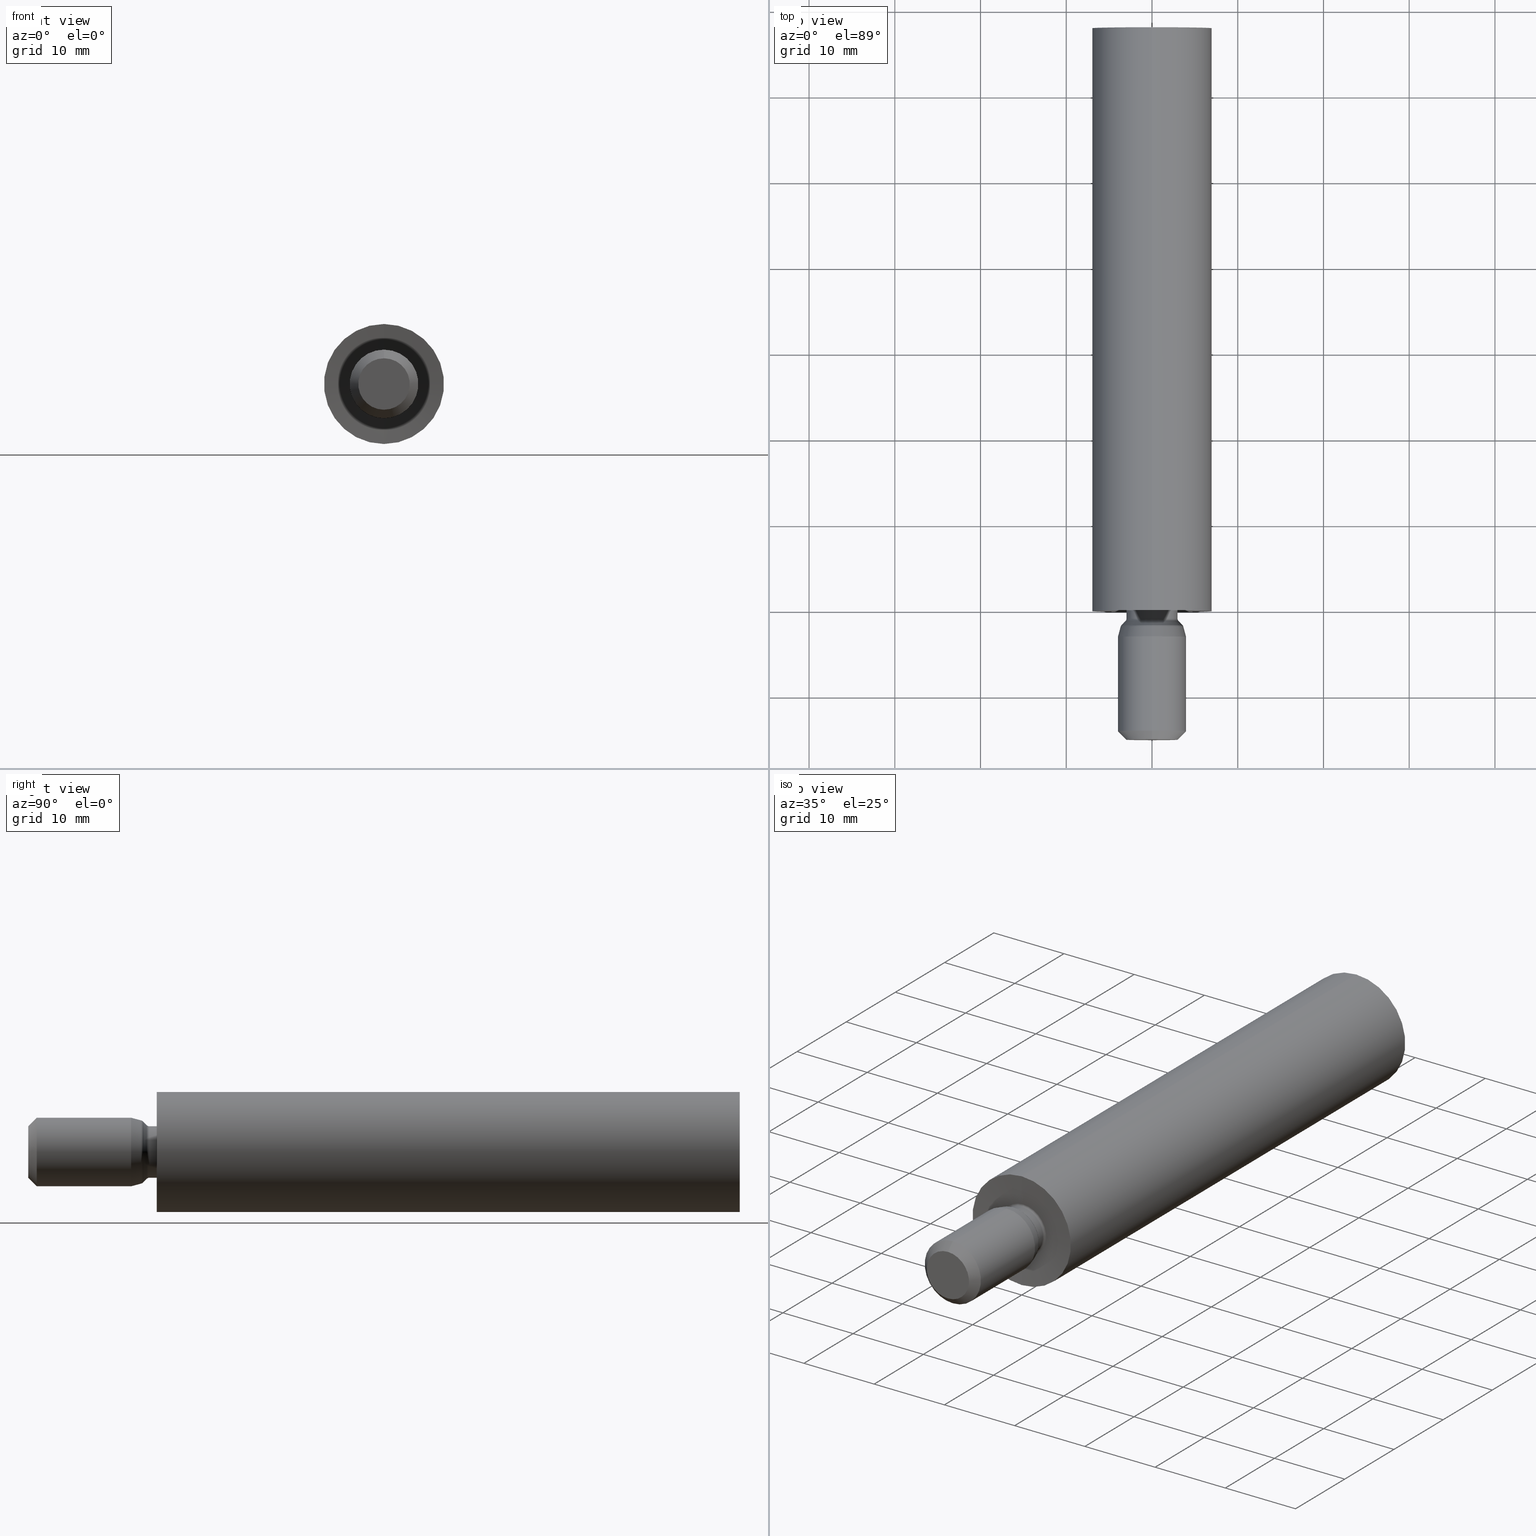
[diagram: canonical four-view strip — front | top / right | iso, engineering-drawing reading convention]
A machine part, canonical four-view strip (front | top / right | iso — engineering-drawing reading convention). The complete STEP part file that produces these views, byte-faithful:
ISO-10303-21;
HEADER;
FILE_DESCRIPTION (( 'STEP AP203' ),
    '1' );
FILE_NAME ('50233-240-68.STEP',
    '2018-05-07T08:55:37',
    ( '' ),
    ( '' ),
    'SwSTEP 2.0',
    'SolidWorks 2015',
    '' );
FILE_SCHEMA (( 'CONFIG_CONTROL_DESIGN' ));
ENDSEC;

DATA;
#1 = DIRECTION ( 'NONE',  ( -0.0000000000000000000, 1.000000000000000000, -0.0000000000000000000 ) ) ;
#2 = DIRECTION ( 'NONE',  ( 1.000000000000000000, 0.0000000000000000000, -1.224646799147353200E-016 ) ) ;
#3 = EDGE_CURVE ( 'NONE', #828, #812, #549, .T. ) ;
#4 = CARTESIAN_POINT ( 'NONE',  ( 0.0000000000000000000, -1.550045345896331300, 0.0000000000000000000 ) ) ;
#5 = CIRCLE ( 'NONE', #180, 7.000000000000000000 ) ;
#6 = COORDINATED_UNIVERSAL_TIME_OFFSET ( 1, 0, .AHEAD. ) ;
#7 = LINE ( 'NONE', #407, #30 ) ;
#8 = DIRECTION ( 'NONE',  ( 0.0000000000000000000, 0.0000000000000000000, -1.000000000000000000 ) ) ;
#9 = EDGE_LOOP ( 'NONE', ( #570, #148, #437, #18 ) ) ;
#10 = VERTEX_POINT ( 'NONE', #316 ) ;
#11 = DIRECTION ( 'NONE',  ( -1.224646799147352200E-016, 0.0000000000000000000, -1.000000000000000000 ) ) ;
#12 = EDGE_LOOP ( 'NONE', ( #499, #52, #738, #602 ) ) ;
#13 = DIRECTION ( 'NONE',  ( 0.0000000000000000000, -0.08715574274765149100, -0.9961946980917461000 ) ) ;
#14 = AXIS2_PLACEMENT_3D ( 'NONE', #155, #541, #789 ) ;
#15 = CALENDAR_DATE ( 2018, 7, 5 ) ;
#16 = DIRECTION ( 'NONE',  ( -0.0000000000000000000, -1.000000000000000000, -0.0000000000000000000 ) ) ;
#17 = VECTOR ( 'NONE', #526, 1000.000000000000000 ) ;
#18 = ORIENTED_EDGE ( 'NONE', *, *, #459, .F. ) ;
#19 = CARTESIAN_POINT ( 'NONE',  ( 4.006785847574703800E-016, 0.3261762033592892100, 3.271788935686913200 ) ) ;
#20 = EDGE_LOOP ( 'NONE', ( #769, #169, #727, #355 ) ) ;
#21 =( NAMED_UNIT ( * ) PLANE_ANGLE_UNIT ( ) SI_UNIT ( $, .RADIAN. ) );
#22 = ORIENTED_EDGE ( 'NONE', *, *, #64, .T. ) ;
#23 = EDGE_CURVE ( 'NONE', #372, #765, #666, .T. ) ;
#24 = CARTESIAN_POINT ( 'NONE',  ( 0.0000000000000000000, -14.99999999999999800, 0.0000000000000000000 ) ) ;
#25 = CARTESIAN_POINT ( 'NONE',  ( 0.0000000000000000000, 64.50000000000000000, 0.0000000000000000000 ) ) ;
#26 = PERSON_AND_ORGANIZATION_ROLE ( 'design_owner' ) ;
#27 = EDGE_CURVE ( 'NONE', #580, #433, #157, .T. ) ;
#28 = TOROIDAL_SURFACE ( 'NONE', #14, 3.399999999999999900, 0.3999999999999996300 ) ;
#29 = CARTESIAN_POINT ( 'NONE',  ( 0.0000000000000000000, 68.00000000000000000, 6.000000000000000000 ) ) ;
#30 = VECTOR ( 'NONE', #219, 1000.000000000000000 ) ;
#31 = DIRECTION ( 'NONE',  ( 0.0000000000000000000, 0.0000000000000000000, -1.000000000000000000 ) ) ;
#32 = ORIENTED_EDGE ( 'NONE', *, *, #563, .T. ) ;
#33 = ORIENTED_EDGE ( 'NONE', *, *, #3, .T. ) ;
#34 = AXIS2_PLACEMENT_3D ( 'NONE', #310, #763, #517 ) ;
#35 = COORDINATED_UNIVERSAL_TIME_OFFSET ( 1, 0, .AHEAD. ) ;
#36 = ORGANIZATION ( 'UNSPECIFIED', 'UNSPECIFIED', '' ) ;
#37 = AXIS2_PLACEMENT_3D ( 'NONE', #792, #787, #278 ) ;
#38 = CIRCLE ( 'NONE', #540, 6.000000000000000000 ) ;
#39 = ORIENTED_EDGE ( 'NONE', *, *, #818, .F. ) ;
#40 = ADVANCED_FACE ( 'NONE', ( #238 ), #104, .T. ) ;
#41 = ORIENTED_EDGE ( 'NONE', *, *, #274, .F. ) ;
#42 = ORIENTED_EDGE ( 'NONE', *, *, #687, .T. ) ;
#43 = CARTESIAN_POINT ( 'NONE',  ( 0.0000000000000000000, -9.860761315262647600E-029, 0.0000000000000000000 ) ) ;
#44 = AXIS2_PLACEMENT_3D ( 'NONE', #25, #685, #297 ) ;
#45 = ADVANCED_FACE ( 'NONE', ( #443 ), #232, .T. ) ;
#46 = CARTESIAN_POINT ( 'NONE',  ( 0.0000000000000000000, -1.809049064345286600, 0.0000000000000000000 ) ) ;
#47 = FACE_OUTER_BOUND ( 'NONE', #239, .T. ) ;
#48 = ADVANCED_FACE ( 'NONE', ( #588 ), #351, .T. ) ;
#49 = FACE_OUTER_BOUND ( 'NONE', #713, .T. ) ;
#50 = DIRECTION ( 'NONE',  ( 0.0000000000000000000, 1.000000000000000000, 0.0000000000000000000 ) ) ;
#51 = EDGE_CURVE ( 'NONE', #658, #696, #65, .T. ) ;
#52 = ORIENTED_EDGE ( 'NONE', *, *, #603, .F. ) ;
#53 = ORIENTED_EDGE ( 'NONE', *, *, #613, .T. ) ;
#54 = ORIENTED_EDGE ( 'NONE', *, *, #770, .T. ) ;
#55 = EDGE_LOOP ( 'NONE', ( #197, #698, #435, #819 ) ) ;
#56 = DIRECTION ( 'NONE',  ( -0.0000000000000000000, -1.000000000000000000, -0.0000000000000000000 ) ) ;
#57 = ADVANCED_FACE ( 'NONE', ( #114 ), #711, .F. ) ;
#58 = CARTESIAN_POINT ( 'NONE',  ( 0.0000000000000000000, 68.00000000000000000, 2.499999999999992900 ) ) ;
#59 = AXIS2_PLACEMENT_3D ( 'NONE', #411, #418, #11 ) ;
#60 = CARTESIAN_POINT ( 'NONE',  ( 0.0000000000000000000, -14.99999999999999800, 0.0000000000000000000 ) ) ;
#61 = DIRECTION ( 'NONE',  ( 0.0000000000000000000, 0.0000000000000000000, -1.000000000000000000 ) ) ;
#62 = DATE_AND_TIME ( #190, #518 ) ;
#63 = LINE ( 'NONE', #537, #510 ) ;
#64 = EDGE_CURVE ( 'NONE', #696, #766, #810, .T. ) ;
#65 = CIRCLE ( 'NONE', #153, 0.2500000000000002200 ) ;
#66 = CARTESIAN_POINT ( 'NONE',  ( 0.0000000000000000000, -1.275275128543790200, 0.0000000000000000000 ) ) ;
#67 = EDGE_LOOP ( 'NONE', ( #695, #600 ) ) ;
#68 = DIRECTION ( 'NONE',  ( 1.000000000000000000, 0.0000000000000000000, -1.224646799147353200E-016 ) ) ;
#69 = ORIENTED_EDGE ( 'NONE', *, *, #446, .T. ) ;
#70 = DIRECTION ( 'NONE',  ( -1.224646799147353500E-016, 0.0000000000000000000, -1.000000000000000000 ) ) ;
#71 = DIRECTION ( 'NONE',  ( -0.0000000000000000000, -1.000000000000000000, -0.0000000000000000000 ) ) ;
#72 = DIRECTION ( 'NONE',  ( 0.0000000000000000000, 0.0000000000000000000, -1.000000000000000000 ) ) ;
#73 = AXIS2_PLACEMENT_3D ( 'NONE', #265, #657, #530 ) ;
#74 = DIRECTION ( 'NONE',  ( 0.0000000000000000000, 0.0000000000000000000, 1.000000000000000000 ) ) ;
#75 = CARTESIAN_POINT ( 'NONE',  ( 0.0000000000000000000, -13.99999999999999800, 0.0000000000000000000 ) ) ;
#76 = VECTOR ( 'NONE', #288, 999.9999999999998900 ) ;
#77 = CARTESIAN_POINT ( 'NONE',  ( 0.0000000000000000000, 68.00000000000000000, 0.0000000000000000000 ) ) ;
#78 = FACE_OUTER_BOUND ( 'NONE', #149, .T. ) ;
#79 = EDGE_CURVE ( 'NONE', #233, #333, #322, .T. ) ;
#80 = CARTESIAN_POINT ( 'NONE',  ( 0.0000000000000000000, 68.00000000000000000, -7.000000000000000000 ) ) ;
#81 = ORIENTED_EDGE ( 'NONE', *, *, #651, .F. ) ;
#82 = ORIENTED_EDGE ( 'NONE', *, *, #821, .F. ) ;
#83 = CARTESIAN_POINT ( 'NONE',  ( 0.0000000000000000000, 68.00000000000000000, 0.0000000000000000000 ) ) ;
#84 = CC_DESIGN_PERSON_AND_ORGANIZATION_ASSIGNMENT ( #88, #294, ( #552 ) ) ;
#85 = DIRECTION ( 'NONE',  ( -0.0000000000000000000, 1.000000000000000000, -0.0000000000000000000 ) ) ;
#86 = DIRECTION ( 'NONE',  ( 0.0000000000000000000, 0.0000000000000000000, 1.000000000000000000 ) ) ;
#87 = AXIS2_PLACEMENT_3D ( 'NONE', #699, #56, #706 ) ;
#88 = PERSON_AND_ORGANIZATION ( #509, #36 ) ;
#89 = VECTOR ( 'NONE', #162, 1000.000000000000000 ) ;
#90 = CIRCLE ( 'NONE', #586, 0.2500000000000002200 ) ;
#91 = DIRECTION ( 'NONE',  ( 0.0000000000000000000, 0.0000000000000000000, -1.000000000000000000 ) ) ;
#92 = ORIENTED_EDGE ( 'NONE', *, *, #697, .F. ) ;
#93 = AXIS2_PLACEMENT_3D ( 'NONE', #596, #394, #61 ) ;
#94 = CARTESIAN_POINT ( 'NONE',  ( 7.347880794884119700E-016, 68.00000000000000000, -6.000000000000000000 ) ) ;
#95 = CARTESIAN_POINT ( 'NONE',  ( 3.061616997868373800E-016, 68.00000000000000000, -2.499999999999992900 ) ) ;
#96 = CARTESIAN_POINT ( 'NONE',  ( 4.703186018189976500E-016, -1.809049064345286600, 3.680885658566238400 ) ) ;
#97 = EDGE_CURVE ( 'NONE', #105, #580, #256, .T. ) ;
#98 = AXIS2_PLACEMENT_3D ( 'NONE', #483, #611, #8 ) ;
#99 = PERSON_AND_ORGANIZATION ( #509, #36 ) ;
#100 = APPROVAL_ROLE ( '' ) ;
#101 = CYLINDRICAL_SURFACE ( 'NONE', #504, 3.000000000000000000 ) ;
#102 = CIRCLE ( 'NONE', #324, 2.499999999999997300 ) ;
#103 = DIRECTION ( 'NONE',  ( 0.0000000000000000000, 0.0000000000000000000, -1.000000000000000000 ) ) ;
#104 = CONICAL_SURFACE ( 'NONE', #681, 3.487401222381565400, 0.7572499996842397800 ) ;
#105 = VERTEX_POINT ( 'NONE', #775 ) ;
#106 = APPROVAL_STATUS ( 'not_yet_approved' ) ;
#107 = VERTEX_POINT ( 'NONE', #463 ) ;
#108 = EDGE_CURVE ( 'NONE', #105, #766, #90, .T. ) ;
#109 = DIRECTION ( 'NONE',  ( 0.0000000000000000000, 0.0000000000000000000, 1.000000000000000000 ) ) ;
#110 = DIRECTION ( 'NONE',  ( 0.0000000000000000000, 0.0000000000000000000, -1.000000000000000000 ) ) ;
#111 = CARTESIAN_POINT ( 'NONE',  ( 0.0000000000000000000, 0.0000000000000000000, 0.0000000000000000000 ) ) ;
#112 = EDGE_CURVE ( 'NONE', #160, #762, #569, .T. ) ;
#113 = CONICAL_SURFACE ( 'NONE', #409, 2.499999999999994700, 1.029744258676653000 ) ;
#114 = FACE_OUTER_BOUND ( 'NONE', #241, .T. ) ;
#115 = ORIENTED_EDGE ( 'NONE', *, *, #393, .F. ) ;
#116 = ORIENTED_EDGE ( 'NONE', *, *, #108, .T. ) ;
#117 = EDGE_LOOP ( 'NONE', ( #161, #53, #41, #226 ) ) ;
#118 = EDGE_CURVE ( 'NONE', #10, #271, #390, .T. ) ;
#119 = AXIS2_PLACEMENT_3D ( 'NONE', #736, #550, #338 ) ;
#120 = ADVANCED_FACE ( 'NONE', ( #136 ), #598, .F. ) ;
#121 = DATE_AND_TIME ( #15, #567 ) ;
#122 = ADVANCED_FACE ( 'NONE', ( #725 ), #302, .T. ) ;
#123 = DIRECTION ( 'NONE',  ( -0.0000000000000000000, -1.000000000000000000, -0.0000000000000000000 ) ) ;
#124 = AXIS2_PLACEMENT_3D ( 'NONE', #720, #525, #259 ) ;
#125 = CYLINDRICAL_SURFACE ( 'NONE', #318, 3.000000000000000000 ) ;
#126 = CIRCLE ( 'NONE', #187, 4.000000000000000000 ) ;
#127 = ORIENTED_EDGE ( 'NONE', *, *, #556, .T. ) ;
#128 = DIRECTION ( 'NONE',  ( 0.0000000000000000000, 0.0000000000000000000, -1.000000000000000000 ) ) ;
#129 = ADVANCED_FACE ( 'NONE', ( #403 ), #745, .T. ) ;
#130 = ORIENTED_EDGE ( 'NONE', *, *, #721, .T. ) ;
#131 = EDGE_CURVE ( 'NONE', #461, #160, #248, .T. ) ;
#132 = CC_DESIGN_PERSON_AND_ORGANIZATION_ASSIGNMENT ( #809, #358, ( #616 ) ) ;
#133 = CARTESIAN_POINT ( 'NONE',  ( 0.0000000000000000000, -3.000000000000000000, 0.0000000000000000000 ) ) ;
#134 = CARTESIAN_POINT ( 'NONE',  ( 8.572527594031473200E-016, 68.00000000000000000, 7.000000000000000000 ) ) ;
#135 = AXIS2_PLACEMENT_3D ( 'NONE', #46, #151, #779 ) ;
#136 = FACE_OUTER_BOUND ( 'NONE', #165, .T. ) ;
#137 = VERTEX_POINT ( 'NONE', #154 ) ;
#138 = ORIENTED_EDGE ( 'NONE', *, *, #23, .F. ) ;
#139 = DIRECTION ( 'NONE',  ( -0.0000000000000000000, -1.000000000000000000, -0.0000000000000000000 ) ) ;
#140 = AXIS2_PLACEMENT_3D ( 'NONE', #489, #726, #548 ) ;
#141 = DIRECTION ( 'NONE',  ( -0.0000000000000000000, -1.000000000000000000, -0.0000000000000000000 ) ) ;
#142 = DIRECTION ( 'NONE',  ( -0.0000000000000000000, 1.000000000000000000, -0.0000000000000000000 ) ) ;
#143 = LINE ( 'NONE', #209, #17 ) ;
#144 = FACE_OUTER_BOUND ( 'NONE', #771, .T. ) ;
#145 = CARTESIAN_POINT ( 'NONE',  ( 0.0000000000000000000, 0.07712752883635271000, -3.250000000000000400 ) ) ;
#146 = DIRECTION ( 'NONE',  ( 0.0000000000000000000, -1.000000000000000000, -0.0000000000000000000 ) ) ;
#147 = AXIS2_PLACEMENT_3D ( 'NONE', #622, #235, #109 ) ;
#148 = ORIENTED_EDGE ( 'NONE', *, *, #638, .T. ) ;
#149 = EDGE_LOOP ( 'NONE', ( #115, #624, #130, #204 ) ) ;
#150 = VERTEX_POINT ( 'NONE', #286 ) ;
#151 = DIRECTION ( 'NONE',  ( -0.0000000000000000000, -1.000000000000000000, -0.0000000000000000000 ) ) ;
#152 = DIRECTION ( 'NONE',  ( -0.0000000000000000000, -1.000000000000000000, -0.0000000000000000000 ) ) ;
#153 = AXIS2_PLACEMENT_3D ( 'NONE', #325, #2, #712 ) ;
#154 = CARTESIAN_POINT ( 'NONE',  ( 0.0000000000000000000, -1.593925905465040800, -3.536303835567993200 ) ) ;
#155 = CARTESIAN_POINT ( 'NONE',  ( 0.0000000000000000000, -0.8752751285437900800, 0.0000000000000000000 ) ) ;
#156 = CIRCLE ( 'NONE', #566, 3.109308879296190000 ) ;
#157 = CIRCLE ( 'NONE', #740, 3.000000000000000000 ) ;
#158 = AXIS2_PLACEMENT_3D ( 'NONE', #75, #650, #257 ) ;
#159 = CARTESIAN_POINT ( 'NONE',  ( 0.0000000000000000000, -9.860761315262647600E-029, 0.0000000000000000000 ) ) ;
#160 = VERTEX_POINT ( 'NONE', #543 ) ;
#161 = ORIENTED_EDGE ( 'NONE', *, *, #597, .T. ) ;
#162 = DIRECTION ( 'NONE',  ( 0.0000000000000000000, -0.7267278017595233400, -0.6869255433813558100 ) ) ;
#163 =( GEOMETRIC_REPRESENTATION_CONTEXT ( 3 ) GLOBAL_UNCERTAINTY_ASSIGNED_CONTEXT ( ( #822 ) ) GLOBAL_UNIT_ASSIGNED_CONTEXT ( ( #170, #21, #553 ) ) REPRESENTATION_CONTEXT ( 'NONE', 'WORKASPACE' ) );
#164 = DIRECTION ( 'NONE',  ( 0.0000000000000000000, 0.0000000000000000000, -1.000000000000000000 ) ) ;
#165 = EDGE_LOOP ( 'NONE', ( #196, #391, #705, #39 ) ) ;
#166 = ORIENTED_EDGE ( 'NONE', *, *, #131, .T. ) ;
#167 = AXIS2_PLACEMENT_3D ( 'NONE', #485, #670, #216 ) ;
#168 = DIRECTION ( 'NONE',  ( 0.0000000000000000000, 0.0000000000000000000, -1.000000000000000000 ) ) ;
#169 = ORIENTED_EDGE ( 'NONE', *, *, #476, .T. ) ;
#170 =( LENGTH_UNIT ( ) NAMED_UNIT ( * ) SI_UNIT ( .MILLI., .METRE. ) );
#171 = ORIENTED_EDGE ( 'NONE', *, *, #438, .T. ) ;
#172 = DIRECTION ( 'NONE',  ( -0.0000000000000000000, -1.000000000000000000, -0.0000000000000000000 ) ) ;
#173 = APPLICATION_CONTEXT ( 'configuration controlled 3d designs of mechanical parts and assemblies' ) ;
#174 = CARTESIAN_POINT ( 'NONE',  ( 0.0000000000000000000, -13.99999999999999800, 0.0000000000000000000 ) ) ;
#175 = APPROVAL_PERSON_ORGANIZATION ( #412, #281, #749 ) ;
#176 = CIRCLE ( 'NONE', #220, 3.271788935686913200 ) ;
#177 = ORIENTED_EDGE ( 'NONE', *, *, #701, .F. ) ;
#178 = ORIENTED_EDGE ( 'NONE', *, *, #821, .T. ) ;
#179 = EDGE_LOOP ( 'NONE', ( #635, #33, #375 ) ) ;
#180 = AXIS2_PLACEMENT_3D ( 'NONE', #77, #201, #260 ) ;
#181 = AXIS2_PLACEMENT_3D ( 'NONE', #213, #739, #673 ) ;
#182 = COORDINATED_UNIVERSAL_TIME_OFFSET ( 1, 0, .AHEAD. ) ;
#183 = FACE_OUTER_BOUND ( 'NONE', #523, .T. ) ;
#184 = ADVANCED_FACE ( 'NONE', ( #791 ), #702, .F. ) ;
#185 = EDGE_LOOP ( 'NONE', ( #645, #32, #460, #458 ) ) ;
#186 = DIRECTION ( 'NONE',  ( 0.0000000000000000000, 0.0000000000000000000, -1.000000000000000000 ) ) ;
#187 = AXIS2_PLACEMENT_3D ( 'NONE', #174, #565, #168 ) ;
#188 = DIRECTION ( 'NONE',  ( -0.0000000000000000000, -1.000000000000000000, -0.0000000000000000000 ) ) ;
#189 = CARTESIAN_POINT ( 'NONE',  ( 3.061616997868376700E-016, 48.00000000000000000, -2.499999999999994700 ) ) ;
#190 = CALENDAR_DATE ( 2018, 7, 5 ) ;
#191 = AXIS2_PLACEMENT_3D ( 'NONE', #798, #350, #665 ) ;
#192 = CIRCLE ( 'NONE', #827, 3.000000000000000000 ) ;
#193 = ORIENTED_EDGE ( 'NONE', *, *, #603, .T. ) ;
#194 = ORIENTED_EDGE ( 'NONE', *, *, #831, .F. ) ;
#195 = CARTESIAN_POINT ( 'NONE',  ( 0.0000000000000000000, 48.00000000000000000, 0.0000000000000000000 ) ) ;
#196 = ORIENTED_EDGE ( 'NONE', *, *, #770, .F. ) ;
#197 = ORIENTED_EDGE ( 'NONE', *, *, #831, .T. ) ;
#198 = EDGE_CURVE ( 'NONE', #382, #107, #432, .T. ) ;
#199 = DIRECTION ( 'NONE',  ( 0.0000000000000000000, 0.0000000000000000000, -1.000000000000000000 ) ) ;
#200 = VECTOR ( 'NONE', #386, 1000.000000000000000 ) ;
#201 = DIRECTION ( 'NONE',  ( -0.0000000000000000000, -1.000000000000000000, -0.0000000000000000000 ) ) ;
#202 = AXIS2_PLACEMENT_3D ( 'NONE', #744, #492, #803 ) ;
#203 = ORIENTED_EDGE ( 'NONE', *, *, #701, .T. ) ;
#204 = ORIENTED_EDGE ( 'NONE', *, *, #368, .F. ) ;
#205 = DIRECTION ( 'NONE',  ( -0.0000000000000000000, -1.000000000000000000, -0.0000000000000000000 ) ) ;
#206 = PLANE ( 'NONE',  #534 ) ;
#207 = EDGE_LOOP ( 'NONE', ( #609, #203, #408, #486 ) ) ;
#208 = EDGE_CURVE ( 'NONE', #704, #225, #761, .T. ) ;
#209 = CARTESIAN_POINT ( 'NONE',  ( 4.270834744332150700E-016, -1.550045345896331300, 3.487401222381565400 ) ) ;
#210 = VECTOR ( 'NONE', #490, 999.9999999999998900 ) ;
#211 = EDGE_CURVE ( 'NONE', #107, #433, #470, .T. ) ;
#212 = FACE_OUTER_BOUND ( 'NONE', #20, .T. ) ;
#213 = CARTESIAN_POINT ( 'NONE',  ( 0.0000000000000000000, 0.0000000000000000000, 0.0000000000000000000 ) ) ;
#214 = DIRECTION ( 'NONE',  ( -0.0000000000000000000, -1.000000000000000000, -0.0000000000000000000 ) ) ;
#215 = ORIENTED_EDGE ( 'NONE', *, *, #27, .T. ) ;
#216 = DIRECTION ( 'NONE',  ( 0.0000000000000000000, 0.0000000000000000000, -1.000000000000000000 ) ) ;
#217 = ORIENTED_EDGE ( 'NONE', *, *, #796, .F. ) ;
#218 = DIRECTION ( 'NONE',  ( 0.0000000000000000000, 0.0000000000000000000, -1.000000000000000000 ) ) ;
#219 = DIRECTION ( 'NONE',  ( -0.0000000000000000000, -1.000000000000000000, -0.0000000000000000000 ) ) ;
#220 = AXIS2_PLACEMENT_3D ( 'NONE', #663, #562, #615 ) ;
#221 = DIRECTION ( 'NONE',  ( 0.0000000000000000000, 0.0000000000000000000, -1.000000000000000000 ) ) ;
#222 = FACE_OUTER_BOUND ( 'NONE', #656, .T. ) ;
#223 = VECTOR ( 'NONE', #385, 1000.000000000000000 ) ;
#224 = EDGE_CURVE ( 'NONE', #765, #704, #102, .T. ) ;
#225 = VERTEX_POINT ( 'NONE', #94 ) ;
#226 = ORIENTED_EDGE ( 'NONE', *, *, #79, .F. ) ;
#227 = CARTESIAN_POINT ( 'NONE',  ( 0.0000000000000000000, -14.99999999999999800, 3.000000000000000000 ) ) ;
#228 = DIRECTION ( 'NONE',  ( 1.219986648345620700E-016, -0.08715574274765149100, 0.9961946980917461000 ) ) ;
#229 = CARTESIAN_POINT ( 'NONE',  ( 0.0000000000000000000, 0.0000000000000000000, 0.0000000000000000000 ) ) ;
#230 = FACE_OUTER_BOUND ( 'NONE', #67, .T. ) ;
#231 = ORIENTED_EDGE ( 'NONE', *, *, #368, .T. ) ;
#232 = CYLINDRICAL_SURFACE ( 'NONE', #236, 7.000000000000000000 ) ;
#233 = VERTEX_POINT ( 'NONE', #80 ) ;
#234 = ORIENTED_EDGE ( 'NONE', *, *, #806, .T. ) ;
#235 = DIRECTION ( 'NONE',  ( -0.0000000000000000000, 1.000000000000000000, -0.0000000000000000000 ) ) ;
#236 = AXIS2_PLACEMENT_3D ( 'NONE', #646, #589, #777 ) ;
#237 = TOROIDAL_SURFACE ( 'NONE', #119, 3.778092343085375200, 0.3999999999999997400 ) ;
#238 = FACE_OUTER_BOUND ( 'NONE', #671, .T. ) ;
#239 = EDGE_LOOP ( 'NONE', ( #729, #826, #22, #579 ) ) ;
#240 = EDGE_LOOP ( 'NONE', ( #513, #166, #374, #542 ) ) ;
#241 = EDGE_LOOP ( 'NONE', ( #551, #444, #231, #482 ) ) ;
#242 = AXIS2_PLACEMENT_3D ( 'NONE', #398, #1, #653 ) ;
#243 = CARTESIAN_POINT ( 'NONE',  ( 0.0000000000000000000, 68.00000000000000000, 0.0000000000000000000 ) ) ;
#244 = EDGE_CURVE ( 'NONE', #793, #762, #790, .T. ) ;
#245 = ADVANCED_FACE ( 'NONE', ( #380 ), #724, .T. ) ;
#246 = FACE_OUTER_BOUND ( 'NONE', #185, .T. ) ;
#247 = CIRCLE ( 'NONE', #788, 7.000000000000000000 ) ;
#248 = LINE ( 'NONE', #732, #576 ) ;
#249 = ORIENTED_EDGE ( 'NONE', *, *, #198, .F. ) ;
#250 = ORIENTED_EDGE ( 'NONE', *, *, #818, .T. ) ;
#251 = ADVANCED_FACE ( 'NONE', ( #49 ), #339, .F. ) ;
#252 = ORIENTED_EDGE ( 'NONE', *, *, #613, .F. ) ;
#253 = DIRECTION ( 'NONE',  ( -0.0000000000000000000, -1.000000000000000000, -0.0000000000000000000 ) ) ;
#254 = AXIS2_PLACEMENT_3D ( 'NONE', #807, #424, #110 ) ;
#255 = CIRCLE ( 'NONE', #707, 3.000000000000000000 ) ;
#256 = LINE ( 'NONE', #462, #768 ) ;
#257 = DIRECTION ( 'NONE',  ( 0.0000000000000000000, 0.0000000000000000000, -1.000000000000000000 ) ) ;
#258 = ORIENTED_EDGE ( 'NONE', *, *, #274, .T. ) ;
#259 = DIRECTION ( 'NONE',  ( 0.0000000000000000000, 0.0000000000000000000, 1.000000000000000000 ) ) ;
#260 = DIRECTION ( 'NONE',  ( 0.0000000000000000000, 0.0000000000000000000, -1.000000000000000000 ) ) ;
#261 = DIRECTION ( 'NONE',  ( -1.000000000000000000, 0.0000000000000000000, 0.0000000000000000000 ) ) ;
#262 = DIRECTION ( 'NONE',  ( -0.0000000000000000000, 1.000000000000000000, -0.0000000000000000000 ) ) ;
#263 = PERSON_AND_ORGANIZATION ( #509, #36 ) ;
#264 = EDGE_CURVE ( 'NONE', #658, #433, #7, .T. ) ;
#265 = CARTESIAN_POINT ( 'NONE',  ( 0.0000000000000000000, -1.912576682386292000, 0.0000000000000000000 ) ) ;
#266 = LINE ( 'NONE', #640, #379 ) ;
#267 = AXIS2_PLACEMENT_3D ( 'NONE', #451, #824, #644 ) ;
#268 = VECTOR ( 'NONE', #718, 1000.000000000000000 ) ;
#269 = DIRECTION ( 'NONE',  ( 0.0000000000000000000, 0.0000000000000000000, -1.000000000000000000 ) ) ;
#270 = VERTEX_POINT ( 'NONE', #477 ) ;
#271 = VERTEX_POINT ( 'NONE', #474 ) ;
#272 = ORIENTED_EDGE ( 'NONE', *, *, #491, .T. ) ;
#273 = DIRECTION ( 'NONE',  ( 0.0000000000000000000, 0.0000000000000000000, 1.000000000000000000 ) ) ;
#274 = EDGE_CURVE ( 'NONE', #333, #406, #401, .T. ) ;
#275 = CARTESIAN_POINT ( 'NONE',  ( 7.347880794884119700E-016, 68.00000000000000000, -6.000000000000000000 ) ) ;
#276 = CARTESIAN_POINT ( 'NONE',  ( 0.0000000000000000000, -0.8752751285437900800, 0.0000000000000000000 ) ) ;
#277 = AXIS2_PLACEMENT_3D ( 'NONE', #715, #392, #70 ) ;
#278 = DIRECTION ( 'NONE',  ( 0.0000000000000000000, 0.0000000000000000000, -1.000000000000000000 ) ) ;
#279 = ORIENTED_EDGE ( 'NONE', *, *, #471, .T. ) ;
#280 = DIRECTION ( 'NONE',  ( -0.0000000000000000000, -1.000000000000000000, -0.0000000000000000000 ) ) ;
#281 = APPROVAL ( #106, 'UNSPECIFIED' ) ;
#282 = EDGE_LOOP ( 'NONE', ( #507, #42, #193 ) ) ;
#283 = DIRECTION ( 'NONE',  ( 0.0000000000000000000, 1.000000000000000000, 0.0000000000000000000 ) ) ;
#284 = ORIENTED_EDGE ( 'NONE', *, *, #459, .T. ) ;
#285 = CARTESIAN_POINT ( 'NONE',  ( 0.0000000000000000000, -3.000000000000000000, 0.0000000000000000000 ) ) ;
#286 = CARTESIAN_POINT ( 'NONE',  ( 4.286263797015736600E-016, -14.99999999999999800, -3.000000000000000000 ) ) ;
#287 = AXIS2_PLACEMENT_3D ( 'NONE', #276, #607, #218 ) ;
#288 = DIRECTION ( 'NONE',  ( 0.0000000000000000000, 0.7071067811865472400, 0.7071067811865479100 ) ) ;
#289 = DIRECTION ( 'NONE',  ( 1.000000000000000000, 0.0000000000000000000, 0.0000000000000000000 ) ) ;
#290 = CONICAL_SURFACE ( 'NONE', #692, 3.487401222381565400, 0.7572499996842397800 ) ;
#291 = FACE_OUTER_BOUND ( 'NONE', #207, .T. ) ;
#292 = AXIS2_PLACEMENT_3D ( 'NONE', #66, #205, #330 ) ;
#293 = CARTESIAN_POINT ( 'NONE',  ( 0.0000000000000000000, 68.00000000000000000, 0.0000000000000000000 ) ) ;
#294 = PERSON_AND_ORGANIZATION_ROLE ( 'design_supplier' ) ;
#295 = CARTESIAN_POINT ( 'NONE',  ( 0.0000000000000000000, 48.00000000000000000, 2.499999999999994700 ) ) ;
#296 = APPLICATION_CONTEXT ( 'configuration controlled 3d designs of mechanical parts and assemblies' ) ;
#297 = DIRECTION ( 'NONE',  ( 0.0000000000000000000, 0.0000000000000000000, 1.000000000000000000 ) ) ;
#298 = PERSON_AND_ORGANIZATION_ROLE ( 'creator' ) ;
#299 = APPROVAL_DATE_TIME ( #62, #281 ) ;
#300 = CARTESIAN_POINT ( 'NONE',  ( 0.0000000000000000000, -9.860761315262647600E-029, -6.999999999999997300 ) ) ;
#301 = CARTESIAN_POINT ( 'NONE',  ( 0.0000000000000000000, -1.275275128543790200, -3.778092343085375200 ) ) ;
#302 = CONICAL_SURFACE ( 'NONE', #191, 3.000000000000000000, 0.7853981633974487200 ) ;
#303 = AXIS2_PLACEMENT_3D ( 'NONE', #455, #642, #767 ) ;
#304 = AXIS2_PLACEMENT_3D ( 'NONE', #414, #283, #273 ) ;
#305 = ADVANCED_FACE ( 'NONE', ( #291 ), #801, .T. ) ;
#306 = DATE_AND_TIME ( #480, #493 ) ;
#307 = FACE_BOUND ( 'NONE', #340, .T. ) ;
#308 = FACE_OUTER_BOUND ( 'NONE', #179, .T. ) ;
#309 = EDGE_CURVE ( 'NONE', #696, #406, #619, .T. ) ;
#310 = CARTESIAN_POINT ( 'NONE',  ( 0.0000000000000000000, 68.00000000000000000, 0.0000000000000000000 ) ) ;
#311 = ORIENTED_EDGE ( 'NONE', *, *, #264, .T. ) ;
#312 = AXIS2_PLACEMENT_3D ( 'NONE', #637, #817, #128 ) ;
#313 = VERTEX_POINT ( 'NONE', #560 ) ;
#314 = DIRECTION ( 'NONE',  ( 0.0000000000000000000, 0.0000000000000000000, -1.000000000000000000 ) ) ;
#315 = ADVANCED_FACE ( 'NONE', ( #441 ), #654, .F. ) ;
#316 = CARTESIAN_POINT ( 'NONE',  ( 4.419254006415697300E-016, -1.593925905465040800, 3.536303835567993700 ) ) ;
#317 = CARTESIAN_POINT ( 'NONE',  ( 4.898587196589412800E-016, -3.000000000000000000, 4.000000000000000000 ) ) ;
#318 = AXIS2_PLACEMENT_3D ( 'NONE', #341, #546, #404 ) ;
#319 = ADVANCED_FACE ( 'NONE', ( #78 ), #629, .F. ) ;
#320 = VECTOR ( 'NONE', #557, 1000.000000000000000 ) ;
#321 = CARTESIAN_POINT ( 'NONE',  ( 0.0000000000000000000, 68.00000000000000000, 0.0000000000000000000 ) ) ;
#322 = LINE ( 'NONE', #397, #268 ) ;
#323 = EDGE_LOOP ( 'NONE', ( #820, #748, #578, #138 ) ) ;
#324 = AXIS2_PLACEMENT_3D ( 'NONE', #608, #422, #86 ) ;
#325 = CARTESIAN_POINT ( 'NONE',  ( 3.980102097228898200E-016, 0.07712752883635271000, 3.250000000000000400 ) ) ;
#326 = CARTESIAN_POINT ( 'NONE',  ( 0.0000000000000000000, 48.00000000000000000, 2.499999999999994700 ) ) ;
#327 = CC_DESIGN_PERSON_AND_ORGANIZATION_ASSIGNMENT ( #814, #26, ( #756 ) ) ;
#328 = CIRCLE ( 'NONE', #98, 3.487401222381565400 ) ;
#329 = CIRCLE ( 'NONE', #44, 2.499999999999997300 ) ;
#330 = DIRECTION ( 'NONE',  ( 0.0000000000000000000, 0.0000000000000000000, -1.000000000000000000 ) ) ;
#331 = ORIENTED_EDGE ( 'NONE', *, *, #764, .T. ) ;
#332 = ORIENTED_EDGE ( 'NONE', *, *, #446, .F. ) ;
#333 = VERTEX_POINT ( 'NONE', #300 ) ;
#334 = EDGE_CURVE ( 'NONE', #762, #160, #126, .T. ) ;
#335 = DIRECTION ( 'NONE',  ( -0.0000000000000000000, -1.000000000000000000, -0.0000000000000000000 ) ) ;
#336 = DIRECTION ( 'NONE',  ( 0.0000000000000000000, 0.0000000000000000000, 1.000000000000000000 ) ) ;
#337 = FACE_OUTER_BOUND ( 'NONE', #55, .T. ) ;
#338 = DIRECTION ( 'NONE',  ( 0.0000000000000000000, 0.0000000000000000000, -1.000000000000000000 ) ) ;
#339 = TOROIDAL_SURFACE ( 'NONE', #140, 3.250000000000000400, 0.2500000000000001100 ) ;
#340 = EDGE_LOOP ( 'NONE', ( #81, #688 ) ) ;
#341 = CARTESIAN_POINT ( 'NONE',  ( 0.0000000000000000000, 0.0000000000000000000, 0.0000000000000000000 ) ) ;
#342 = EDGE_LOOP ( 'NONE', ( #668, #217, #811, #258 ) ) ;
#343 = APPROVAL ( #741, 'UNSPECIFIED' ) ;
#344 = CARTESIAN_POINT ( 'NONE',  ( 0.0000000000000000000, 0.3261762033592892100, -3.271788935686913200 ) ) ;
#345 = DIRECTION ( 'NONE',  ( 8.659560562354931600E-017, 0.7071067811865475700, -0.7071067811865474600 ) ) ;
#346 = CARTESIAN_POINT ( 'NONE',  ( 0.0000000000000000000, -1.593925905465040800, 0.0000000000000000000 ) ) ;
#347 = APPROVAL_PERSON_ORGANIZATION ( #263, #757, #680 ) ;
#348 = AXIS2_PLACEMENT_3D ( 'NONE', #601, #612, #785 ) ;
#349 = FACE_OUTER_BOUND ( 'NONE', #836, .T. ) ;
#350 = DIRECTION ( 'NONE',  ( 0.0000000000000000000, 1.000000000000000000, 0.0000000000000000000 ) ) ;
#351 = TOROIDAL_SURFACE ( 'NONE', #73, 3.294515328050610800, 0.3999999999999997400 ) ;
#352 = DIRECTION ( 'NONE',  ( 0.0000000000000000000, 0.0000000000000000000, 1.000000000000000000 ) ) ;
#353 = ORIENTED_EDGE ( 'NONE', *, *, #796, .T. ) ;
#354 = DIRECTION ( 'NONE',  ( 0.0000000000000000000, 0.0000000000000000000, 1.000000000000000000 ) ) ;
#355 = ORIENTED_EDGE ( 'NONE', *, *, #112, .F. ) ;
#356 = EDGE_CURVE ( 'NONE', #793, #461, #505, .T. ) ;
#357 = AXIS2_PLACEMENT_3D ( 'NONE', #648, #68, #473 ) ;
#358 = PERSON_AND_ORGANIZATION_ROLE ( 'classification_officer' ) ;
#359 = LOCAL_TIME ( 10, 55, 37.00000000000000000, #35 ) ;
#360 = DIRECTION ( 'NONE',  ( -1.000000000000000000, 0.0000000000000000000, 0.0000000000000000000 ) ) ;
#361 = CONICAL_SURFACE ( 'NONE', #632, 4.000000000000000000, 0.2617993877991424700 ) ;
#362 = TOROIDAL_SURFACE ( 'NONE', #303, 3.294515328050610800, 0.3999999999999997400 ) ;
#363 = AXIS2_PLACEMENT_3D ( 'NONE', #625, #554, #434 ) ;
#364 = CARTESIAN_POINT ( 'NONE',  ( 0.0000000000000000000, -1.150045345896331300, 0.0000000000000000000 ) ) ;
#365 = ORIENTED_EDGE ( 'NONE', *, *, #752, .T. ) ;
#366 = EDGE_LOOP ( 'NONE', ( #497, #737, #284, #82 ) ) ;
#367 = ORIENTED_EDGE ( 'NONE', *, *, #413, .T. ) ;
#368 = EDGE_CURVE ( 'NONE', #765, #669, #538, .T. ) ;
#369 = CIRCLE ( 'NONE', #675, 3.000000000000000000 ) ;
#370 = ADVANCED_FACE ( 'NONE', ( #782 ), #450, .F. ) ;
#371 = ORIENTED_EDGE ( 'NONE', *, *, #413, .F. ) ;
#372 = VERTEX_POINT ( 'NONE', #295 ) ;
#373 = CC_DESIGN_APPROVAL ( #343, ( #717 ) ) ;
#374 = ORIENTED_EDGE ( 'NONE', *, *, #334, .F. ) ;
#375 = ORIENTED_EDGE ( 'NONE', *, *, #429, .T. ) ;
#376 = VERTEX_POINT ( 'NONE', #425 ) ;
#377 = ADVANCED_FACE ( 'NONE', ( #212 ), #457, .T. ) ;
#378 = EDGE_CURVE ( 'NONE', #812, #704, #816, .T. ) ;
#379 = VECTOR ( 'NONE', #524, 999.9999999999998900 ) ;
#380 = FACE_OUTER_BOUND ( 'NONE', #240, .T. ) ;
#381 = EDGE_LOOP ( 'NONE', ( #753, #746, #69, #92 ) ) ;
#382 = VERTEX_POINT ( 'NONE', #439 ) ;
#383 = DIRECTION ( 'NONE',  ( 0.0000000000000000000, 0.0000000000000000000, 1.000000000000000000 ) ) ;
#384 = ORIENTED_EDGE ( 'NONE', *, *, #834, .F. ) ;
#385 = DIRECTION ( 'NONE',  ( -0.0000000000000000000, 1.000000000000000000, -0.0000000000000000000 ) ) ;
#386 = DIRECTION ( 'NONE',  ( 0.0000000000000000000, 0.5150380749100554900, 0.8571673007021115600 ) ) ;
#387 = AXIS2_PLACEMENT_3D ( 'NONE', #243, #50, #581 ) ;
#388 = APPROVAL_DATE_TIME ( #121, #343 ) ;
#389 = FACE_OUTER_BOUND ( 'NONE', #9, .T. ) ;
#390 = CIRCLE ( 'NONE', #277, 0.3999999999999997400 ) ;
#391 = ORIENTED_EDGE ( 'NONE', *, *, #118, .T. ) ;
#392 = DIRECTION ( 'NONE',  ( 1.000000000000000000, 0.0000000000000000000, -1.224646799147353200E-016 ) ) ;
#393 = EDGE_CURVE ( 'NONE', #704, #765, #329, .T. ) ;
#394 = DIRECTION ( 'NONE',  ( -0.0000000000000000000, -1.000000000000000000, -0.0000000000000000000 ) ) ;
#395 = DIRECTION ( 'NONE',  ( -0.0000000000000000000, -1.000000000000000000, -0.0000000000000000000 ) ) ;
#396 = EDGE_CURVE ( 'NONE', #107, #382, #156, .T. ) ;
#397 = CARTESIAN_POINT ( 'NONE',  ( 0.0000000000000000000, 0.0000000000000000000, -7.000000000000000000 ) ) ;
#398 = CARTESIAN_POINT ( 'NONE',  ( 0.0000000000000000000, 68.00000000000000000, 0.0000000000000000000 ) ) ;
#399 = AXIS2_PLACEMENT_3D ( 'NONE', #647, #262, #336 ) ;
#400 = VECTOR ( 'NONE', #13, 1000.000000000000000 ) ;
#401 = CIRCLE ( 'NONE', #631, 7.000000000000000000 ) ;
#402 = DIRECTION ( 'NONE',  ( 0.0000000000000000000, 0.0000000000000000000, 1.000000000000000000 ) ) ;
#403 = FACE_OUTER_BOUND ( 'NONE', #117, .T. ) ;
#404 = DIRECTION ( 'NONE',  ( 0.0000000000000000000, 0.0000000000000000000, -1.000000000000000000 ) ) ;
#405 = ORIENTED_EDGE ( 'NONE', *, *, #556, .F. ) ;
#406 = VERTEX_POINT ( 'NONE', #682 ) ;
#407 = CARTESIAN_POINT ( 'NONE',  ( 3.673940397442059900E-016, 0.0000000000000000000, 3.000000000000000000 ) ) ;
#408 = ORIENTED_EDGE ( 'NONE', *, *, #334, .T. ) ;
#409 = AXIS2_PLACEMENT_3D ( 'NONE', #195, #516, #383 ) ;
#410 = CARTESIAN_POINT ( 'NONE',  ( 0.0000000000000000000, 0.07712752883635271000, 0.0000000000000000000 ) ) ;
#411 = CARTESIAN_POINT ( 'NONE',  ( 4.163799117101000600E-016, -0.8752751285437900800, 3.399999999999999900 ) ) ;
#412 = PERSON_AND_ORGANIZATION ( #509, #36 ) ;
#413 = EDGE_CURVE ( 'NONE', #313, #150, #255, .T. ) ;
#414 = CARTESIAN_POINT ( 'NONE',  ( 0.0000000000000000000, -14.99999999999999800, 0.0000000000000000000 ) ) ;
#415 = CALENDAR_DATE ( 2018, 7, 5 ) ;
#416 = DIRECTION ( 'NONE',  ( 3.169619151431682400E-017, -0.9659258262890702000, 0.2588190451025140200 ) ) ;
#417 = LINE ( 'NONE', #593, #674 ) ;
#418 = DIRECTION ( 'NONE',  ( 1.000000000000000000, 0.0000000000000000000, -1.224646799147353200E-016 ) ) ;
#419 = ORIENTED_EDGE ( 'NONE', *, *, #573, .T. ) ;
#420 = CARTESIAN_POINT ( 'NONE',  ( 4.898587196589412800E-016, -13.99999999999999800, -4.000000000000000000 ) ) ;
#421 = EDGE_LOOP ( 'NONE', ( #171, #127, #194, #716 ) ) ;
#422 = DIRECTION ( 'NONE',  ( -0.0000000000000000000, 1.000000000000000000, -0.0000000000000000000 ) ) ;
#423 = CC_DESIGN_PERSON_AND_ORGANIZATION_ASSIGNMENT ( #710, #747, ( #717 ) ) ;
#424 = DIRECTION ( 'NONE',  ( -0.0000000000000000000, -1.000000000000000000, -0.0000000000000000000 ) ) ;
#425 = CARTESIAN_POINT ( 'NONE',  ( 0.0000000000000000000, -1.550045345896331300, -3.487401222381565400 ) ) ;
#426 = MANIFOLD_SOLID_BREP ( 'Formsenkung f�r M6 Senkschraube mit Innensechskant1', #804 ) ;
#427 = CARTESIAN_POINT ( 'NONE',  ( 0.0000000000000000000, -0.8752751285437900800, -3.399999999999999900 ) ) ;
#428 = CONICAL_SURFACE ( 'NONE', #627, 4.000000000000000000, 0.2617993877991424700 ) ;
#429 = EDGE_CURVE ( 'NONE', #812, #372, #595, .T. ) ;
#430 = FACE_OUTER_BOUND ( 'NONE', #366, .T. ) ;
#431 = DIRECTION ( 'NONE',  ( 0.0000000000000000000, 0.0000000000000000000, 1.000000000000000000 ) ) ;
#432 = CIRCLE ( 'NONE', #167, 3.109308879296190000 ) ;
#433 = VERTEX_POINT ( 'NONE', #614 ) ;
#434 = DIRECTION ( 'NONE',  ( 0.0000000000000000000, 0.0000000000000000000, -1.000000000000000000 ) ) ;
#435 = ORIENTED_EDGE ( 'NONE', *, *, #356, .F. ) ;
#436 = CARTESIAN_POINT ( 'NONE',  ( 0.0000000000000000000, 0.07712752883635271000, 0.0000000000000000000 ) ) ;
#437 = ORIENTED_EDGE ( 'NONE', *, *, #97, .T. ) ;
#438 = EDGE_CURVE ( 'NONE', #137, #10, #512, .T. ) ;
#439 = CARTESIAN_POINT ( 'NONE',  ( 0.0000000000000000000, -1.150045345896331300, -3.109308879296190000 ) ) ;
#440 = CARTESIAN_POINT ( 'NONE',  ( -5.266508213502312800E-015, 46.49784845243110000, 0.0000000000000000000 ) ) ;
#441 = FACE_OUTER_BOUND ( 'NONE', #282, .T. ) ;
#442 = AXIS2_PLACEMENT_3D ( 'NONE', #410, #280, #667 ) ;
#443 = FACE_OUTER_BOUND ( 'NONE', #679, .T. ) ;
#444 = ORIENTED_EDGE ( 'NONE', *, *, #224, .F. ) ;
#445 = ADVANCED_FACE ( 'NONE', ( #308 ), #113, .F. ) ;
#446 = EDGE_CURVE ( 'NONE', #406, #333, #247, .T. ) ;
#447 = ADVANCED_FACE ( 'NONE', ( #144 ), #362, .T. ) ;
#448 = DIRECTION ( 'NONE',  ( 0.0000000000000000000, 0.0000000000000000000, -1.000000000000000000 ) ) ;
#449 = FACE_OUTER_BOUND ( 'NONE', #621, .T. ) ;
#450 = CONICAL_SURFACE ( 'NONE', #202, 3.271788935686913200, 1.483529864195186800 ) ;
#451 = CARTESIAN_POINT ( 'NONE',  ( 0.0000000000000000000, 48.00000000000000000, 0.0000000000000000000 ) ) ;
#452 = AXIS2_PLACEMENT_3D ( 'NONE', #346, #214, #797 ) ;
#453 = ORIENTED_EDGE ( 'NONE', *, *, #529, .T. ) ;
#454 = ORIENTED_EDGE ( 'NONE', *, *, #476, .F. ) ;
#455 = CARTESIAN_POINT ( 'NONE',  ( 0.0000000000000000000, -1.912576682386292000, 0.0000000000000000000 ) ) ;
#456 = AXIS2_PLACEMENT_3D ( 'NONE', #133, #253, #703 ) ;
#457 = CYLINDRICAL_SURFACE ( 'NONE', #750, 4.000000000000000000 ) ;
#458 = ORIENTED_EDGE ( 'NONE', *, *, #806, .F. ) ;
#459 = EDGE_CURVE ( 'NONE', #433, #580, #481, .T. ) ;
#460 = ORIENTED_EDGE ( 'NONE', *, *, #752, .F. ) ;
#461 = VERTEX_POINT ( 'NONE', #317 ) ;
#462 = CARTESIAN_POINT ( 'NONE',  ( 0.0000000000000000000, 0.0000000000000000000, -3.000000000000000000 ) ) ;
#463 = CARTESIAN_POINT ( 'NONE',  ( 4.039319955461337000E-016, -1.150045345896331300, 3.109308879296190000 ) ) ;
#464 = DIRECTION ( 'NONE',  ( -1.000000000000000000, 0.0000000000000000000, 0.0000000000000000000 ) ) ;
#465 = CC_DESIGN_DATE_AND_TIME_ASSIGNMENT ( #643, #555, ( #717 ) ) ;
#466 = PERSON_AND_ORGANIZATION ( #509, #36 ) ;
#467 = CARTESIAN_POINT ( 'NONE',  ( 0.0000000000000000000, -0.8752751285437900800, 0.0000000000000000000 ) ) ;
#468 = LINE ( 'NONE', #488, #89 ) ;
#469 = CARTESIAN_POINT ( 'NONE',  ( 0.0000000000000000000, -1.912576682386292000, -3.294515328050610800 ) ) ;
#470 = CIRCLE ( 'NONE', #59, 0.3999999999999997400 ) ;
#471 = EDGE_CURVE ( 'NONE', #150, #313, #192, .T. ) ;
#472 = ORIENTED_EDGE ( 'NONE', *, *, #97, .F. ) ;
#473 = DIRECTION ( 'NONE',  ( -1.224646799147353500E-016, 0.0000000000000000000, -1.000000000000000000 ) ) ;
#474 = CARTESIAN_POINT ( 'NONE',  ( 4.300778958686500600E-016, -1.550045345896331300, 3.487401222381565400 ) ) ;
#475 = CARTESIAN_POINT ( 'NONE',  ( 0.0000000000000000000, 0.3261762033592892100, -3.271788935686914100 ) ) ;
#476 = EDGE_CURVE ( 'NONE', #461, #793, #528, .T. ) ;
#477 = CARTESIAN_POINT ( 'NONE',  ( 0.0000000000000000000, -1.809049064345286600, -3.680885658566238400 ) ) ;
#478 = CARTESIAN_POINT ( 'NONE',  ( 5.204748896376249700E-016, 64.50000000000000000, -2.499999999999997300 ) ) ;
#479 = CC_DESIGN_DATE_AND_TIME_ASSIGNMENT ( #786, #805, ( #616 ) ) ;
#480 = CALENDAR_DATE ( 2018, 7, 5 ) ;
#481 = CIRCLE ( 'NONE', #87, 3.000000000000000000 ) ;
#482 = ORIENTED_EDGE ( 'NONE', *, *, #651, .T. ) ;
#483 = CARTESIAN_POINT ( 'NONE',  ( 0.0000000000000000000, -1.550045345896331300, 0.0000000000000000000 ) ) ;
#484 = ORIENTED_EDGE ( 'NONE', *, *, #79, .T. ) ;
#485 = CARTESIAN_POINT ( 'NONE',  ( 0.0000000000000000000, -1.150045345896331300, 0.0000000000000000000 ) ) ;
#486 = ORIENTED_EDGE ( 'NONE', *, *, #764, .F. ) ;
#487 = AXIS2_PLACEMENT_3D ( 'NONE', #301, #620, #354 ) ;
#488 = CARTESIAN_POINT ( 'NONE',  ( 0.0000000000000000000, -1.550045345896331300, -3.487401222381565400 ) ) ;
#489 = CARTESIAN_POINT ( 'NONE',  ( 0.0000000000000000000, 0.07712752883635271000, 0.0000000000000000000 ) ) ;
#490 = DIRECTION ( 'NONE',  ( 8.659560562354937800E-017, 0.7071067811865472400, -0.7071067811865479100 ) ) ;
#491 = EDGE_CURVE ( 'NONE', #531, #233, #815, .T. ) ;
#492 = DIRECTION ( 'NONE',  ( -0.0000000000000000000, -1.000000000000000000, -0.0000000000000000000 ) ) ;
#493 = LOCAL_TIME ( 10, 55, 37.00000000000000000, #182 ) ;
#494 = DIRECTION ( 'NONE',  ( -0.0000000000000000000, -1.000000000000000000, -0.0000000000000000000 ) ) ;
#495 = CIRCLE ( 'NONE', #357, 0.3999999999999997400 ) ;
#496 = VECTOR ( 'NONE', #152, 1000.000000000000000 ) ;
#497 = ORIENTED_EDGE ( 'NONE', *, *, #396, .F. ) ;
#498 = APPLICATION_PROTOCOL_DEFINITION ( 'international standard', 'config_control_design', 1994, #296 ) ;
#499 = ORIENTED_EDGE ( 'NONE', *, *, #378, .F. ) ;
#500 = DIRECTION ( 'NONE',  ( -0.0000000000000000000, -1.000000000000000000, -0.0000000000000000000 ) ) ;
#501 = AXIS2_PLACEMENT_3D ( 'NONE', #427, #360, #352 ) ;
#502 = APPLICATION_PROTOCOL_DEFINITION ( 'international standard', 'config_control_design', 1994, #173 ) ;
#503 = DIRECTION ( 'NONE',  ( 0.0000000000000000000, 0.0000000000000000000, -1.000000000000000000 ) ) ;
#504 = AXIS2_PLACEMENT_3D ( 'NONE', #591, #141, #832 ) ;
#505 = CIRCLE ( 'NONE', #363, 4.000000000000000000 ) ;
#506 = VECTOR ( 'NONE', #639, 1000.000000000000000 ) ;
#507 = ORIENTED_EDGE ( 'NONE', *, *, #3, .F. ) ;
#508 = ORIENTED_EDGE ( 'NONE', *, *, #691, .F. ) ;
#509 = PERSON ( 'UNSPECIFIED', 'UNSPECIFIED', 'UNSPECIFIED', ('UNSPECIFIED'), ('UNSPECIFIED'), ('UNSPECIFIED') ) ;
#510 = VECTOR ( 'NONE', #416, 999.9999999999998900 ) ;
#511 = AXIS2_PLACEMENT_3D ( 'NONE', #321, #123, #574 ) ;
#512 = CIRCLE ( 'NONE', #312, 3.536303835567993200 ) ;
#513 = ORIENTED_EDGE ( 'NONE', *, *, #356, .T. ) ;
#514 = ORIENTED_EDGE ( 'NONE', *, *, #118, .F. ) ;
#515 = ADVANCED_FACE ( 'NONE', ( #751 ), #520, .F. ) ;
#516 = DIRECTION ( 'NONE',  ( -0.0000000000000000000, 1.000000000000000000, -0.0000000000000000000 ) ) ;
#517 = DIRECTION ( 'NONE',  ( 0.0000000000000000000, 0.0000000000000000000, 1.000000000000000000 ) ) ;
#518 = LOCAL_TIME ( 10, 55, 37.00000000000000000, #6 ) ;
#519 = ADVANCED_FACE ( 'NONE', ( #307, #230 ), #521, .T. ) ;
#520 = CYLINDRICAL_SURFACE ( 'NONE', #34, 2.499999999999992900 ) ;
#521 = PLANE ( 'NONE',  #387 ) ;
#522 = CARTESIAN_POINT ( 'NONE',  ( 0.0000000000000000000, -1.550045345896331300, 0.0000000000000000000 ) ) ;
#523 = EDGE_LOOP ( 'NONE', ( #754, #311, #539, #472 ) ) ;
#524 = DIRECTION ( 'NONE',  ( 0.0000000000000000000, -0.9659258262890702000, -0.2588190451025140200 ) ) ;
#525 = DIRECTION ( 'NONE',  ( -0.0000000000000000000, 1.000000000000000000, -0.0000000000000000000 ) ) ;
#526 = DIRECTION ( 'NONE',  ( 8.412411679545337200E-017, -0.7267278017595233400, 0.6869255433813558100 ) ) ;
#527 = SHAPE_DEFINITION_REPRESENTATION ( #662, #802 ) ;
#528 = CIRCLE ( 'NONE', #456, 4.000000000000000000 ) ;
#529 = EDGE_CURVE ( 'NONE', #270, #793, #266, .T. ) ;
#530 = DIRECTION ( 'NONE',  ( 0.0000000000000000000, 0.0000000000000000000, -1.000000000000000000 ) ) ;
#531 = VERTEX_POINT ( 'NONE', #134 ) ;
#532 = DIRECTION ( 'NONE',  ( 0.0000000000000000000, 0.0000000000000000000, -1.000000000000000000 ) ) ;
#533 = DIRECTION ( 'NONE',  ( -0.0000000000000000000, -1.000000000000000000, -0.0000000000000000000 ) ) ;
#534 = AXIS2_PLACEMENT_3D ( 'NONE', #776, #146, #829 ) ;
#535 = CARTESIAN_POINT ( 'NONE',  ( 0.0000000000000000000, 0.0000000000000000000, -4.000000000000000000 ) ) ;
#536 = FACE_OUTER_BOUND ( 'NONE', #323, .T. ) ;
#537 = CARTESIAN_POINT ( 'NONE',  ( 4.898587196589412800E-016, -3.000000000000000000, 4.000000000000000000 ) ) ;
#538 = LINE ( 'NONE', #29, #320 ) ;
#539 = ORIENTED_EDGE ( 'NONE', *, *, #27, .F. ) ;
#540 = AXIS2_PLACEMENT_3D ( 'NONE', #83, #85, #672 ) ;
#541 = DIRECTION ( 'NONE',  ( -0.0000000000000000000, -1.000000000000000000, -0.0000000000000000000 ) ) ;
#542 = ORIENTED_EDGE ( 'NONE', *, *, #244, .F. ) ;
#543 = CARTESIAN_POINT ( 'NONE',  ( 0.0000000000000000000, -13.99999999999999800, 4.000000000000000000 ) ) ;
#544 = EDGE_CURVE ( 'NONE', #835, #270, #833, .T. ) ;
#545 = DIRECTION ( 'NONE',  ( -0.0000000000000000000, -1.000000000000000000, -0.0000000000000000000 ) ) ;
#546 = DIRECTION ( 'NONE',  ( -0.0000000000000000000, -1.000000000000000000, -0.0000000000000000000 ) ) ;
#547 = CIRCLE ( 'NONE', #582, 3.487401222381565400 ) ;
#548 = DIRECTION ( 'NONE',  ( 0.0000000000000000000, 0.0000000000000000000, -1.000000000000000000 ) ) ;
#549 = LINE ( 'NONE', #189, #506 ) ;
#550 = DIRECTION ( 'NONE',  ( -0.0000000000000000000, -1.000000000000000000, -0.0000000000000000000 ) ) ;
#551 = ORIENTED_EDGE ( 'NONE', *, *, #208, .F. ) ;
#552 = PRODUCT_DEFINITION_FORMATION_WITH_SPECIFIED_SOURCE ( 'ANY', '', #756, .NOT_KNOWN. ) ;
#553 =( NAMED_UNIT ( * ) SI_UNIT ( $, .STERADIAN. ) SOLID_ANGLE_UNIT ( ) );
#554 = DIRECTION ( 'NONE',  ( -0.0000000000000000000, -1.000000000000000000, -0.0000000000000000000 ) ) ;
#555 = DATE_TIME_ROLE ( 'creation_date' ) ;
#556 = EDGE_CURVE ( 'NONE', #10, #835, #495, .T. ) ;
#557 = DIRECTION ( 'NONE',  ( 0.0000000000000000000, 0.7071067811865475700, 0.7071067811865474600 ) ) ;
#558 = LINE ( 'NONE', #604, #210 ) ;
#559 = VECTOR ( 'NONE', #345, 1000.000000000000000 ) ;
#560 = CARTESIAN_POINT ( 'NONE',  ( 0.0000000000000000000, -14.99999999999999800, 3.000000000000000000 ) ) ;
#561 = ORIENTED_EDGE ( 'NONE', *, *, #51, .F. ) ;
#562 = DIRECTION ( 'NONE',  ( -0.0000000000000000000, -1.000000000000000000, -0.0000000000000000000 ) ) ;
#563 = EDGE_CURVE ( 'NONE', #107, #271, #143, .T. ) ;
#564 = ORIENTED_EDGE ( 'NONE', *, *, #438, .F. ) ;
#565 = DIRECTION ( 'NONE',  ( -0.0000000000000000000, -1.000000000000000000, -0.0000000000000000000 ) ) ;
#566 = AXIS2_PLACEMENT_3D ( 'NONE', #364, #808, #164 ) ;
#567 = LOCAL_TIME ( 10, 55, 37.00000000000000000, #584 ) ;
#568 = CIRCLE ( 'NONE', #487, 0.3999999999999997400 ) ;
#569 = CIRCLE ( 'NONE', #158, 4.000000000000000000 ) ;
#570 = ORIENTED_EDGE ( 'NONE', *, *, #264, .F. ) ;
#571 = EDGE_LOOP ( 'NONE', ( #177, #371, #331, #636 ) ) ;
#572 = ADVANCED_FACE ( 'NONE', ( #349 ), #206, .T. ) ;
#573 = EDGE_CURVE ( 'NONE', #137, #270, #587, .T. ) ;
#574 = DIRECTION ( 'NONE',  ( 0.0000000000000000000, 0.0000000000000000000, -1.000000000000000000 ) ) ;
#575 = CIRCLE ( 'NONE', #452, 3.536303835567993200 ) ;
#576 = VECTOR ( 'NONE', #545, 1000.000000000000000 ) ;
#577 = ADVANCED_FACE ( 'NONE', ( #758 ), #361, .T. ) ;
#578 = ORIENTED_EDGE ( 'NONE', *, *, #393, .T. ) ;
#579 = ORIENTED_EDGE ( 'NONE', *, *, #108, .F. ) ;
#580 = VERTEX_POINT ( 'NONE', #723 ) ;
#581 = DIRECTION ( 'NONE',  ( 0.0000000000000000000, -0.0000000000000000000, 1.000000000000000000 ) ) ;
#582 = AXIS2_PLACEMENT_3D ( 'NONE', #4, #731, #91 ) ;
#583 = ADVANCED_FACE ( 'NONE', ( #183 ), #101, .T. ) ;
#584 = COORDINATED_UNIVERSAL_TIME_OFFSET ( 1, 0, .AHEAD. ) ;
#585 = DIRECTION ( 'NONE',  ( -0.0000000000000000000, -1.000000000000000000, -0.0000000000000000000 ) ) ;
#586 = AXIS2_PLACEMENT_3D ( 'NONE', #145, #261, #402 ) ;
#587 = CIRCLE ( 'NONE', #592, 0.3999999999999997400 ) ;
#588 = FACE_OUTER_BOUND ( 'NONE', #421, .T. ) ;
#589 = DIRECTION ( 'NONE',  ( -0.0000000000000000000, -1.000000000000000000, -0.0000000000000000000 ) ) ;
#590 = ORIENTED_EDGE ( 'NONE', *, *, #778, .F. ) ;
#591 = CARTESIAN_POINT ( 'NONE',  ( 0.0000000000000000000, 0.0000000000000000000, 0.0000000000000000000 ) ) ;
#592 = AXIS2_PLACEMENT_3D ( 'NONE', #469, #464, #74 ) ;
#593 = CARTESIAN_POINT ( 'NONE',  ( 8.572527594031473200E-016, 0.0000000000000000000, 7.000000000000000000 ) ) ;
#594 = CIRCLE ( 'NONE', #242, 6.000000000000000000 ) ;
#595 = CIRCLE ( 'NONE', #267, 2.499999999999994700 ) ;
#596 = CARTESIAN_POINT ( 'NONE',  ( 0.0000000000000000000, 0.3261762033592892100, 0.0000000000000000000 ) ) ;
#597 = EDGE_CURVE ( 'NONE', #233, #531, #5, .T. ) ;
#598 = TOROIDAL_SURFACE ( 'NONE', #292, 3.778092343085375200, 0.3999999999999997400 ) ;
#599 = CARTESIAN_POINT ( 'NONE',  ( 0.0000000000000000000, -1.550045345896331300, 0.0000000000000000000 ) ) ;
#600 = ORIENTED_EDGE ( 'NONE', *, *, #491, .F. ) ;
#601 = CARTESIAN_POINT ( 'NONE',  ( 0.0000000000000000000, 0.0000000000000000000, 0.0000000000000000000 ) ) ;
#602 = ORIENTED_EDGE ( 'NONE', *, *, #224, .T. ) ;
#603 = EDGE_CURVE ( 'NONE', #372, #812, #694, .T. ) ;
#604 = CARTESIAN_POINT ( 'NONE',  ( 3.673940397442059900E-016, -14.99999999999999800, -3.000000000000000000 ) ) ;
#605 = CC_DESIGN_SECURITY_CLASSIFICATION ( #616, ( #552 ) ) ;
#606 = DIRECTION ( 'NONE',  ( -0.0000000000000000000, -1.000000000000000000, -0.0000000000000000000 ) ) ;
#607 = DIRECTION ( 'NONE',  ( -0.0000000000000000000, -1.000000000000000000, -0.0000000000000000000 ) ) ;
#608 = CARTESIAN_POINT ( 'NONE',  ( 0.0000000000000000000, 64.50000000000000000, 0.0000000000000000000 ) ) ;
#609 = ORIENTED_EDGE ( 'NONE', *, *, #471, .F. ) ;
#610 = AXIS2_PLACEMENT_3D ( 'NONE', #659, #142, #783 ) ;
#611 = DIRECTION ( 'NONE',  ( -0.0000000000000000000, -1.000000000000000000, -0.0000000000000000000 ) ) ;
#612 = DIRECTION ( 'NONE',  ( -0.0000000000000000000, -1.000000000000000000, -0.0000000000000000000 ) ) ;
#613 = EDGE_CURVE ( 'NONE', #531, #406, #417, .T. ) ;
#614 = CARTESIAN_POINT ( 'NONE',  ( 3.740872782016291400E-016, -0.8752751285437900800, 3.000000000000000000 ) ) ;
#615 = DIRECTION ( 'NONE',  ( 0.0000000000000000000, 0.0000000000000000000, -1.000000000000000000 ) ) ;
#616 = SECURITY_CLASSIFICATION ( '', '', #623 ) ;
#617 = TOROIDAL_SURFACE ( 'NONE', #287, 3.399999999999999900, 0.3999999999999996300 ) ;
#618 = DIRECTION ( 'NONE',  ( -0.0000000000000000000, 1.000000000000000000, -0.0000000000000000000 ) ) ;
#619 = LINE ( 'NONE', #19, #825 ) ;
#620 = DIRECTION ( 'NONE',  ( -1.000000000000000000, 0.0000000000000000000, 0.0000000000000000000 ) ) ;
#621 = EDGE_LOOP ( 'NONE', ( #795, #249, #178, #215 ) ) ;
#622 = CARTESIAN_POINT ( 'NONE',  ( 0.0000000000000000000, 48.00000000000000000, 0.0000000000000000000 ) ) ;
#623 = SECURITY_CLASSIFICATION_LEVEL ( 'unclassified' ) ;
#624 = ORIENTED_EDGE ( 'NONE', *, *, #208, .T. ) ;
#625 = CARTESIAN_POINT ( 'NONE',  ( 0.0000000000000000000, -3.000000000000000000, 0.0000000000000000000 ) ) ;
#626 = DIRECTION ( 'NONE',  ( 0.0000000000000000000, 0.0000000000000000000, 1.000000000000000000 ) ) ;
#627 = AXIS2_PLACEMENT_3D ( 'NONE', #285, #16, #503 ) ;
#628 = DIRECTION ( 'NONE',  ( -0.0000000000000000000, 1.000000000000000000, -0.0000000000000000000 ) ) ;
#629 = CONICAL_SURFACE ( 'NONE', #774, 6.000000000000000000, 0.7853981633974482800 ) ;
#630 = ORIENTED_EDGE ( 'NONE', *, *, #544, .T. ) ;
#631 = AXIS2_PLACEMENT_3D ( 'NONE', #159, #606, #221 ) ;
#632 = AXIS2_PLACEMENT_3D ( 'NONE', #719, #139, #714 ) ;
#633 = LINE ( 'NONE', #344, #400 ) ;
#634 = ADVANCED_FACE ( 'NONE', ( #246 ), #290, .T. ) ;
#635 = ORIENTED_EDGE ( 'NONE', *, *, #687, .F. ) ;
#636 = ORIENTED_EDGE ( 'NONE', *, *, #112, .T. ) ;
#637 = CARTESIAN_POINT ( 'NONE',  ( 0.0000000000000000000, -1.593925905465040800, 0.0000000000000000000 ) ) ;
#638 = EDGE_CURVE ( 'NONE', #658, #105, #799, .T. ) ;
#639 = DIRECTION ( 'NONE',  ( 1.049727191138617700E-016, 0.5150380749100554900, -0.8571673007021115600 ) ) ;
#640 = CARTESIAN_POINT ( 'NONE',  ( 0.0000000000000000000, -3.000000000000000000, -4.000000000000000000 ) ) ;
#641 = ADVANCED_FACE ( 'NONE', ( #536 ), #684, .F. ) ;
#642 = DIRECTION ( 'NONE',  ( -0.0000000000000000000, -1.000000000000000000, -0.0000000000000000000 ) ) ;
#643 = DATE_AND_TIME ( #415, #649 ) ;
#644 = DIRECTION ( 'NONE',  ( 0.0000000000000000000, 0.0000000000000000000, 1.000000000000000000 ) ) ;
#645 = ORIENTED_EDGE ( 'NONE', *, *, #198, .T. ) ;
#646 = CARTESIAN_POINT ( 'NONE',  ( 0.0000000000000000000, 0.0000000000000000000, 0.0000000000000000000 ) ) ;
#647 = CARTESIAN_POINT ( 'NONE',  ( 0.0000000000000000000, 48.00000000000000000, 0.0000000000000000000 ) ) ;
#648 = CARTESIAN_POINT ( 'NONE',  ( 4.034617651239072500E-016, -1.912576682386292000, 3.294515328050610800 ) ) ;
#649 = LOCAL_TIME ( 10, 55, 37.00000000000000000, #664 ) ;
#650 = DIRECTION ( 'NONE',  ( -0.0000000000000000000, -1.000000000000000000, -0.0000000000000000000 ) ) ;
#651 = EDGE_CURVE ( 'NONE', #669, #225, #594, .T. ) ;
#652 = CIRCLE ( 'NONE', #501, 0.3999999999999997400 ) ;
#653 = DIRECTION ( 'NONE',  ( 0.0000000000000000000, 0.0000000000000000000, 1.000000000000000000 ) ) ;
#654 = CONICAL_SURFACE ( 'NONE', #147, 2.499999999999994700, 1.029744258676653000 ) ;
#655 = CC_DESIGN_APPROVAL ( #281, ( #616 ) ) ;
#656 = EDGE_LOOP ( 'NONE', ( #514, #564, #250, #365 ) ) ;
#657 = DIRECTION ( 'NONE',  ( -0.0000000000000000000, -1.000000000000000000, -0.0000000000000000000 ) ) ;
#658 = VERTEX_POINT ( 'NONE', #773 ) ;
#659 = CARTESIAN_POINT ( 'NONE',  ( 0.0000000000000000000, 68.00000000000000000, 0.0000000000000000000 ) ) ;
#660 = EDGE_LOOP ( 'NONE', ( #590, #630, #453, #454 ) ) ;
#661 = CARTESIAN_POINT ( 'NONE',  ( 0.0000000000000000000, 0.07712752883635271000, 0.0000000000000000000 ) ) ;
#662 = PRODUCT_DEFINITION_SHAPE ( 'NONE', 'NONE',  #717 ) ;
#663 = CARTESIAN_POINT ( 'NONE',  ( 0.0000000000000000000, 0.3261762033592892100, 0.0000000000000000000 ) ) ;
#664 = COORDINATED_UNIVERSAL_TIME_OFFSET ( 1, 0, .AHEAD. ) ;
#665 = DIRECTION ( 'NONE',  ( 0.0000000000000000000, 0.0000000000000000000, 1.000000000000000000 ) ) ;
#666 = LINE ( 'NONE', #58, #223 ) ;
#667 = DIRECTION ( 'NONE',  ( 0.0000000000000000000, 0.0000000000000000000, -1.000000000000000000 ) ) ;
#668 = ORIENTED_EDGE ( 'NONE', *, *, #309, .F. ) ;
#669 = VERTEX_POINT ( 'NONE', #709 ) ;
#670 = DIRECTION ( 'NONE',  ( -0.0000000000000000000, -1.000000000000000000, -0.0000000000000000000 ) ) ;
#671 = EDGE_LOOP ( 'NONE', ( #678, #676, #234, #508 ) ) ;
#672 = DIRECTION ( 'NONE',  ( 0.0000000000000000000, 0.0000000000000000000, 1.000000000000000000 ) ) ;
#673 = DIRECTION ( 'NONE',  ( 0.0000000000000000000, 0.0000000000000000000, -1.000000000000000000 ) ) ;
#674 = VECTOR ( 'NONE', #71, 1000.000000000000000 ) ;
#675 = AXIS2_PLACEMENT_3D ( 'NONE', #436, #494, #31 ) ;
#676 = ORIENTED_EDGE ( 'NONE', *, *, #396, .T. ) ;
#677 = MECHANICAL_CONTEXT ( 'NONE', #296, 'mechanical' ) ;
#678 = ORIENTED_EDGE ( 'NONE', *, *, #563, .F. ) ;
#679 = EDGE_LOOP ( 'NONE', ( #252, #272, #484, #332 ) ) ;
#680 = APPROVAL_ROLE ( '' ) ;
#681 = AXIS2_PLACEMENT_3D ( 'NONE', #522, #533, #269 ) ;
#682 = CARTESIAN_POINT ( 'NONE',  ( 8.572527594031469200E-016, -9.860761315262647600E-029, 6.999999999999997300 ) ) ;
#683 = CALENDAR_DATE ( 2018, 7, 5 ) ;
#684 = CYLINDRICAL_SURFACE ( 'NONE', #610, 2.499999999999992900 ) ;
#685 = DIRECTION ( 'NONE',  ( -0.0000000000000000000, 1.000000000000000000, -0.0000000000000000000 ) ) ;
#686 = APPROVAL_STATUS ( 'not_yet_approved' ) ;
#687 = EDGE_CURVE ( 'NONE', #828, #372, #722, .T. ) ;
#688 = ORIENTED_EDGE ( 'NONE', *, *, #721, .F. ) ;
#689 = CARTESIAN_POINT ( 'NONE',  ( 3.061616997868376700E-016, 48.00000000000000000, -2.499999999999994700 ) ) ;
#690 = ORIENTED_EDGE ( 'NONE', *, *, #544, .F. ) ;
#691 = EDGE_CURVE ( 'NONE', #271, #376, #328, .T. ) ;
#692 = AXIS2_PLACEMENT_3D ( 'NONE', #599, #335, #199 ) ;
#693 = ADVANCED_FACE ( 'NONE', ( #389 ), #125, .T. ) ;
#694 = CIRCLE ( 'NONE', #399, 2.499999999999994700 ) ;
#695 = ORIENTED_EDGE ( 'NONE', *, *, #597, .F. ) ;
#696 = VERTEX_POINT ( 'NONE', #728 ) ;
#697 = EDGE_CURVE ( 'NONE', #766, #333, #633, .T. ) ;
#698 = ORIENTED_EDGE ( 'NONE', *, *, #778, .T. ) ;
#699 = CARTESIAN_POINT ( 'NONE',  ( 0.0000000000000000000, -0.8752751285437900800, 0.0000000000000000000 ) ) ;
#700 = ADVANCED_FACE ( 'NONE', ( #430 ), #28, .F. ) ;
#701 = EDGE_CURVE ( 'NONE', #150, #762, #558, .T. ) ;
#702 = CONICAL_SURFACE ( 'NONE', #37, 3.271788935686913200, 1.483529864195186800 ) ;
#703 = DIRECTION ( 'NONE',  ( 0.0000000000000000000, 0.0000000000000000000, -1.000000000000000000 ) ) ;
#704 = VERTEX_POINT ( 'NONE', #478 ) ;
#705 = ORIENTED_EDGE ( 'NONE', *, *, #691, .T. ) ;
#706 = DIRECTION ( 'NONE',  ( 0.0000000000000000000, 0.0000000000000000000, -1.000000000000000000 ) ) ;
#707 = AXIS2_PLACEMENT_3D ( 'NONE', #24, #172, #448 ) ;
#708 = DIRECTION ( 'NONE',  ( -0.0000000000000000000, -1.000000000000000000, -0.0000000000000000000 ) ) ;
#709 = CARTESIAN_POINT ( 'NONE',  ( 0.0000000000000000000, 68.00000000000000000, 6.000000000000000000 ) ) ;
#710 = PERSON_AND_ORGANIZATION ( #509, #36 ) ;
#711 = CONICAL_SURFACE ( 'NONE', #124, 6.000000000000000000, 0.7853981633974482800 ) ;
#712 = DIRECTION ( 'NONE',  ( -1.224646799147353500E-016, 0.0000000000000000000, -1.000000000000000000 ) ) ;
#713 = EDGE_LOOP ( 'NONE', ( #561, #384, #116, #353 ) ) ;
#714 = DIRECTION ( 'NONE',  ( 0.0000000000000000000, 0.0000000000000000000, -1.000000000000000000 ) ) ;
#715 = CARTESIAN_POINT ( 'NONE',  ( 4.626828694842627900E-016, -1.275275128543790200, 3.778092343085375200 ) ) ;
#716 = ORIENTED_EDGE ( 'NONE', *, *, #573, .F. ) ;
#717 = PRODUCT_DEFINITION ( 'UNKNOWN', '', #552, #730 ) ;
#718 = DIRECTION ( 'NONE',  ( -0.0000000000000000000, -1.000000000000000000, -0.0000000000000000000 ) ) ;
#719 = CARTESIAN_POINT ( 'NONE',  ( 0.0000000000000000000, -3.000000000000000000, 0.0000000000000000000 ) ) ;
#720 = CARTESIAN_POINT ( 'NONE',  ( 0.0000000000000000000, 68.00000000000000000, 0.0000000000000000000 ) ) ;
#721 = EDGE_CURVE ( 'NONE', #225, #669, #38, .T. ) ;
#722 = LINE ( 'NONE', #326, #200 ) ;
#723 = CARTESIAN_POINT ( 'NONE',  ( 0.0000000000000000000, -0.8752751285437900800, -3.000000000000000000 ) ) ;
#724 = CYLINDRICAL_SURFACE ( 'NONE', #181, 4.000000000000000000 ) ;
#725 = FACE_OUTER_BOUND ( 'NONE', #571, .T. ) ;
#726 = DIRECTION ( 'NONE',  ( -0.0000000000000000000, -1.000000000000000000, -0.0000000000000000000 ) ) ;
#727 = ORIENTED_EDGE ( 'NONE', *, *, #244, .T. ) ;
#728 = CARTESIAN_POINT ( 'NONE',  ( 4.006785847574704800E-016, 0.3261762033592892100, 3.271788935686914100 ) ) ;
#729 = ORIENTED_EDGE ( 'NONE', *, *, #638, .F. ) ;
#730 = DESIGN_CONTEXT ( 'detailed design', #173, 'design' ) ;
#731 = DIRECTION ( 'NONE',  ( -0.0000000000000000000, -1.000000000000000000, -0.0000000000000000000 ) ) ;
#732 = CARTESIAN_POINT ( 'NONE',  ( 4.898587196589412800E-016, 0.0000000000000000000, 4.000000000000000000 ) ) ;
#733 = APPROVAL_PERSON_ORGANIZATION ( #466, #343, #100 ) ;
#734 = CIRCLE ( 'NONE', #254, 3.680885658566238400 ) ;
#735 = AXIS2_PLACEMENT_3D ( 'NONE', #229, #626, #289 ) ;
#736 = CARTESIAN_POINT ( 'NONE',  ( 0.0000000000000000000, -1.275275128543790200, 0.0000000000000000000 ) ) ;
#737 = ORIENTED_EDGE ( 'NONE', *, *, #211, .T. ) ;
#738 = ORIENTED_EDGE ( 'NONE', *, *, #23, .T. ) ;
#739 = DIRECTION ( 'NONE',  ( -0.0000000000000000000, -1.000000000000000000, -0.0000000000000000000 ) ) ;
#740 = AXIS2_PLACEMENT_3D ( 'NONE', #467, #830, #72 ) ;
#741 = APPROVAL_STATUS ( 'not_yet_approved' ) ;
#742 = PRODUCT_RELATED_PRODUCT_CATEGORY ( 'detail', '', ( #756 ) ) ;
#743 = TOROIDAL_SURFACE ( 'NONE', #442, 3.250000000000000400, 0.2500000000000001100 ) ;
#744 = CARTESIAN_POINT ( 'NONE',  ( 0.0000000000000000000, 0.3261762033592892100, 0.0000000000000000000 ) ) ;
#745 = CYLINDRICAL_SURFACE ( 'NONE', #348, 7.000000000000000000 ) ;
#746 = ORIENTED_EDGE ( 'NONE', *, *, #309, .T. ) ;
#747 = PERSON_AND_ORGANIZATION_ROLE ( 'creator' ) ;
#748 = ORIENTED_EDGE ( 'NONE', *, *, #378, .T. ) ;
#749 = APPROVAL_ROLE ( '' ) ;
#750 = AXIS2_PLACEMENT_3D ( 'NONE', #111, #500, #103 ) ;
#751 = FACE_OUTER_BOUND ( 'NONE', #12, .T. ) ;
#752 = EDGE_CURVE ( 'NONE', #376, #271, #547, .T. ) ;
#753 = ORIENTED_EDGE ( 'NONE', *, *, #64, .F. ) ;
#754 = ORIENTED_EDGE ( 'NONE', *, *, #834, .T. ) ;
#755 = ADVANCED_FACE ( 'NONE', ( #449 ), #617, .F. ) ;
#756 = PRODUCT ( '50233-240-68', '50233-240-68', '', ( #677 ) ) ;
#757 = APPROVAL ( #686, 'UNSPECIFIED' ) ;
#758 = FACE_OUTER_BOUND ( 'NONE', #660, .T. ) ;
#759 = ADVANCED_FACE ( 'NONE', ( #222 ), #237, .F. ) ;
#760 = VECTOR ( 'NONE', #628, 1000.000000000000000 ) ;
#761 = LINE ( 'NONE', #275, #559 ) ;
#762 = VERTEX_POINT ( 'NONE', #420 ) ;
#763 = DIRECTION ( 'NONE',  ( -0.0000000000000000000, 1.000000000000000000, -0.0000000000000000000 ) ) ;
#764 = EDGE_CURVE ( 'NONE', #313, #160, #781, .T. ) ;
#765 = VERTEX_POINT ( 'NONE', #784 ) ;
#766 = VERTEX_POINT ( 'NONE', #475 ) ;
#767 = DIRECTION ( 'NONE',  ( 0.0000000000000000000, 0.0000000000000000000, -1.000000000000000000 ) ) ;
#768 = VECTOR ( 'NONE', #585, 1000.000000000000000 ) ;
#769 = ORIENTED_EDGE ( 'NONE', *, *, #131, .F. ) ;
#770 = EDGE_CURVE ( 'NONE', #10, #137, #575, .T. ) ;
#771 = EDGE_LOOP ( 'NONE', ( #405, #54, #419, #690 ) ) ;
#772 = ADVANCED_FACE ( 'NONE', ( #47 ), #743, .F. ) ;
#773 = CARTESIAN_POINT ( 'NONE',  ( 3.673940397442059900E-016, 0.07712752883635271000, 3.000000000000000000 ) ) ;
#774 = AXIS2_PLACEMENT_3D ( 'NONE', #293, #618, #431 ) ;
#775 = CARTESIAN_POINT ( 'NONE',  ( 0.0000000000000000000, 0.07712752883635271000, -3.000000000000000000 ) ) ;
#776 = CARTESIAN_POINT ( 'NONE',  ( 1.836970198721029600E-015, -15.00000000000000000, 0.0000000000000000000 ) ) ;
#777 = DIRECTION ( 'NONE',  ( 0.0000000000000000000, 0.0000000000000000000, -1.000000000000000000 ) ) ;
#778 = EDGE_CURVE ( 'NONE', #835, #461, #63, .T. ) ;
#779 = DIRECTION ( 'NONE',  ( 0.0000000000000000000, 0.0000000000000000000, -1.000000000000000000 ) ) ;
#780 = APPROVAL_DATE_TIME ( #306, #757 ) ;
#781 = LINE ( 'NONE', #227, #76 ) ;
#782 = FACE_OUTER_BOUND ( 'NONE', #381, .T. ) ;
#783 = DIRECTION ( 'NONE',  ( 0.0000000000000000000, 0.0000000000000000000, 1.000000000000000000 ) ) ;
#784 = CARTESIAN_POINT ( 'NONE',  ( 0.0000000000000000000, 64.50000000000000000, 2.499999999999997300 ) ) ;
#785 = DIRECTION ( 'NONE',  ( 0.0000000000000000000, 0.0000000000000000000, -1.000000000000000000 ) ) ;
#786 = DATE_AND_TIME ( #683, #359 ) ;
#787 = DIRECTION ( 'NONE',  ( -0.0000000000000000000, -1.000000000000000000, -0.0000000000000000000 ) ) ;
#788 = AXIS2_PLACEMENT_3D ( 'NONE', #43, #708, #186 ) ;
#789 = DIRECTION ( 'NONE',  ( 0.0000000000000000000, 0.0000000000000000000, -1.000000000000000000 ) ) ;
#790 = LINE ( 'NONE', #535, #496 ) ;
#791 = FACE_OUTER_BOUND ( 'NONE', #342, .T. ) ;
#792 = CARTESIAN_POINT ( 'NONE',  ( 0.0000000000000000000, 0.3261762033592892100, 0.0000000000000000000 ) ) ;
#793 = VERTEX_POINT ( 'NONE', #794 ) ;
#794 = CARTESIAN_POINT ( 'NONE',  ( 0.0000000000000000000, -3.000000000000000000, -4.000000000000000000 ) ) ;
#795 = ORIENTED_EDGE ( 'NONE', *, *, #211, .F. ) ;
#796 = EDGE_CURVE ( 'NONE', #766, #696, #176, .T. ) ;
#797 = DIRECTION ( 'NONE',  ( 0.0000000000000000000, 0.0000000000000000000, -1.000000000000000000 ) ) ;
#798 = CARTESIAN_POINT ( 'NONE',  ( 0.0000000000000000000, -14.99999999999999800, 0.0000000000000000000 ) ) ;
#799 = CIRCLE ( 'NONE', #813, 3.000000000000000000 ) ;
#800 = CC_DESIGN_APPROVAL ( #757, ( #552 ) ) ;
#801 = CONICAL_SURFACE ( 'NONE', #304, 3.000000000000000000, 0.7853981633974487200 ) ;
#802 = ADVANCED_BREP_SHAPE_REPRESENTATION ( '50233-240-68', ( #426, #735 ), #163 ) ;
#803 = DIRECTION ( 'NONE',  ( 0.0000000000000000000, 0.0000000000000000000, -1.000000000000000000 ) ) ;
#804 = CLOSED_SHELL ( 'NONE', ( #641, #445, #319, #129, #370, #772, #583, #700, #634, #120, #48, #823, #245, #305, #572, #122, #377, #577, #447, #759, #40, #755, #693, #251, #184, #45, #519, #57, #315, #515 ) ) ;
#805 = DATE_TIME_ROLE ( 'classification_date' ) ;
#806 = EDGE_CURVE ( 'NONE', #382, #376, #468, .T. ) ;
#807 = CARTESIAN_POINT ( 'NONE',  ( 0.0000000000000000000, -1.809049064345286600, 0.0000000000000000000 ) ) ;
#808 = DIRECTION ( 'NONE',  ( -0.0000000000000000000, -1.000000000000000000, -0.0000000000000000000 ) ) ;
#809 = PERSON_AND_ORGANIZATION ( #509, #36 ) ;
#810 = CIRCLE ( 'NONE', #93, 3.271788935686913200 ) ;
#811 = ORIENTED_EDGE ( 'NONE', *, *, #697, .T. ) ;
#812 = VERTEX_POINT ( 'NONE', #689 ) ;
#813 = AXIS2_PLACEMENT_3D ( 'NONE', #661, #395, #532 ) ;
#814 = PERSON_AND_ORGANIZATION ( #509, #36 ) ;
#815 = CIRCLE ( 'NONE', #511, 7.000000000000000000 ) ;
#816 = LINE ( 'NONE', #95, #760 ) ;
#817 = DIRECTION ( 'NONE',  ( -0.0000000000000000000, -1.000000000000000000, -0.0000000000000000000 ) ) ;
#818 = EDGE_CURVE ( 'NONE', #137, #376, #568, .T. ) ;
#819 = ORIENTED_EDGE ( 'NONE', *, *, #529, .F. ) ;
#820 = ORIENTED_EDGE ( 'NONE', *, *, #429, .F. ) ;
#821 = EDGE_CURVE ( 'NONE', #382, #580, #652, .T. ) ;
#822 = UNCERTAINTY_MEASURE_WITH_UNIT (LENGTH_MEASURE( 1.000000000000000100E-005 ), #170, 'distance_accuracy_value', 'NONE');
#823 = ADVANCED_FACE ( 'NONE', ( #337 ), #428, .T. ) ;
#824 = DIRECTION ( 'NONE',  ( -0.0000000000000000000, 1.000000000000000000, -0.0000000000000000000 ) ) ;
#825 = VECTOR ( 'NONE', #228, 1000.000000000000000 ) ;
#826 = ORIENTED_EDGE ( 'NONE', *, *, #51, .T. ) ;
#827 = AXIS2_PLACEMENT_3D ( 'NONE', #60, #188, #314 ) ;
#828 = VERTEX_POINT ( 'NONE', #440 ) ;
#829 = DIRECTION ( 'NONE',  ( 0.0000000000000000000, 0.0000000000000000000, -1.000000000000000000 ) ) ;
#830 = DIRECTION ( 'NONE',  ( -0.0000000000000000000, -1.000000000000000000, -0.0000000000000000000 ) ) ;
#831 = EDGE_CURVE ( 'NONE', #270, #835, #734, .T. ) ;
#832 = DIRECTION ( 'NONE',  ( 0.0000000000000000000, 0.0000000000000000000, -1.000000000000000000 ) ) ;
#833 = CIRCLE ( 'NONE', #135, 3.680885658566238400 ) ;
#834 = EDGE_CURVE ( 'NONE', #105, #658, #369, .T. ) ;
#835 = VERTEX_POINT ( 'NONE', #96 ) ;
#836 = EDGE_LOOP ( 'NONE', ( #367, #279 ) ) ;
#837 = CC_DESIGN_PERSON_AND_ORGANIZATION_ASSIGNMENT ( #99, #298, ( #552 ) ) ;
ENDSEC;
END-ISO-10303-21;
